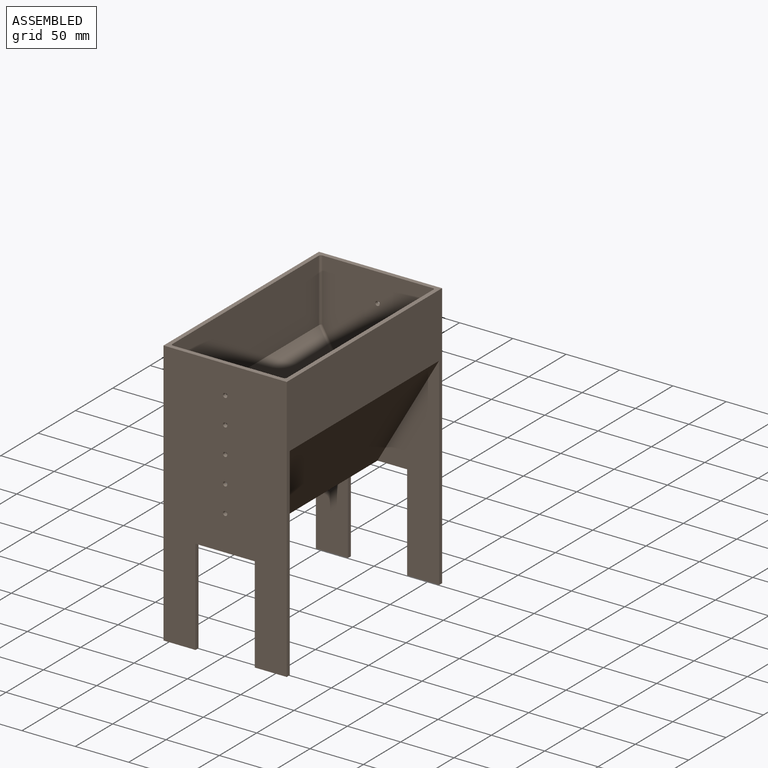
[diagram: assembled view]
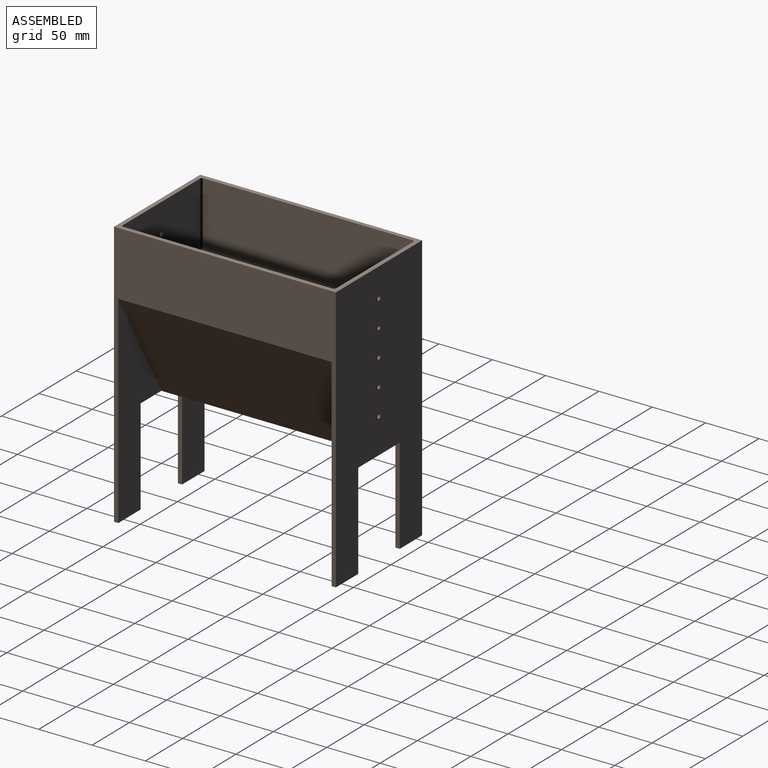
[diagram: assembled view, second angle]
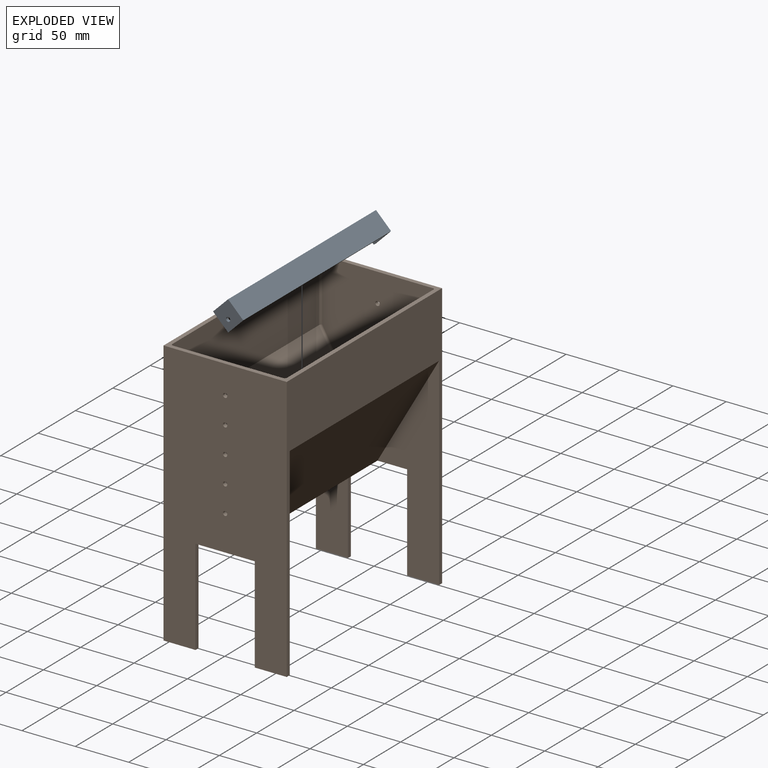
[diagram: exploded view]
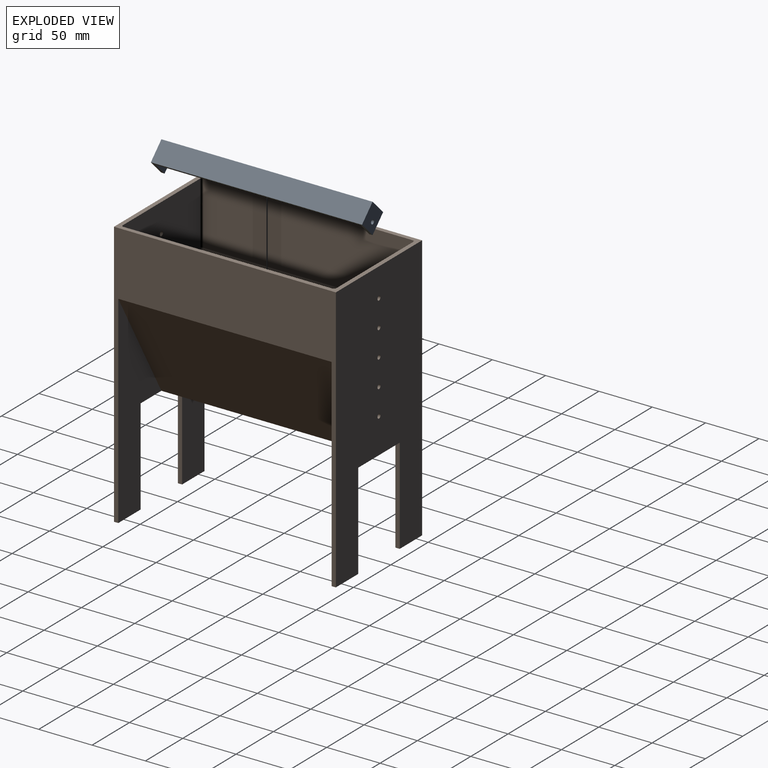
[diagram: exploded view, second angle]
ASSEMBLY  parts=2 mates=2
PART A: 12 faces, bbox 28.3x198x28.3 mm
  f0: plane 198x14.14mm, normal (0.71,0,0.71), area 3960mm2, adj f1,f5,f7,f8
  f1: plane 198x14.14mm, normal (-0.71,0,0.71), area 3960mm2, adj f0,f2,f7,f8
  f2: plane 198x14.14mm, normal (-0.71,0,-0.71), area 696mm2, adj f1,f3,f5,f6,f7,f8,f9
  f3: plane 192x12.02mm, normal (0.71,0,-0.71), area 3264mm2, adj f2,f4,f6,f9
  f4: plane 192x12.02mm, normal (-0.71,0,-0.71), area 3264mm2, adj f3,f5,f6,f9
  f5: plane 198x14.14mm, normal (0.71,0,-0.71), area 696mm2, adj f0,f2,f4,f6,f7,f8,f9
  f6: plane 24.04x24.04mm, normal (0,1,0), area 276.4mm2, adj f2,f3,f4,f5,f11
  f7: plane 28.28x28.28mm, normal (0,-1,0), area 387.4mm2, adj f0,f1,f2,f5,f11
  f8: plane 28.28x28.28mm, normal (0,1,0), area 387.4mm2, adj f0,f1,f2,f5,f10
  f9: plane 24.04x24.04mm, normal (0,-1,0), area 276.4mm2, adj f2,f3,f4,f5,f10
  f10: cylinder r=2mm len=4mm, axis (0,-1,0), area 37.7mm2, adj f8,f9
  f11: cylinder r=2mm len=4mm, axis (0,-1,0), area 37.7mm2, adj f6,f7
PART B: 48 faces, bbox 115.5x208x250 mm
  f0: plane 30x4mm, normal (0,0,-1), area 120mm2, adj f3,f11,f13,f35
  f1: plane 30x4mm, normal (0,0,-1), area 120mm2, adj f5,f13,f18,f32
  f2: plane 190x57.74mm, normal (0,1,0), area 5586.8mm2, adj f6,f10,f17,f34,f36
  f3: plane 250x115.47mm, normal (0,-1,0), area 23812.4mm2, adj f0,f9,f10,f13,f17,f21,f22,f23
  f4: plane 190x57.74mm, normal (0,-1,0), area 5586.8mm2, adj f6,f10,f20,f31,f33
  f5: plane 250x115.47mm, normal (0,1,0), area 23812.4mm2, adj f1,f9,f10,f13,f20,f26,f27,f28
  f6: plane 200x100mm, normal (-0.87,0,-0.5), area 23094mm2, adj f2,f4,f10,f12
  f7: plane 196x90.07mm, normal (0.87,0,0.5), area 20385.2mm2, adj f8,f40,f43,f44
  f8: plane 196x58.93mm, normal (1,0,0), area 11549.9mm2, adj f7,f9,f38,f42
  f9: plane 208x115.47mm, normal (0,0,1), area 2527.2mm2, adj f3,f5,f8,f10,f13,f14,f16,f19
  f10: plane 250x208mm, normal (-1,0,0), area 14000mm2, adj f2,f3,f4,f5,f6,f9,f17,f20
  f11: plane 190x57.74mm, normal (0,1,0), area 5586.8mm2, adj f0,f12,f13,f35,f36
  f12: plane 200x100mm, normal (0.87,0,-0.5), area 23094mm2, adj f6,f11,f13,f18
  f13: plane 250x208mm, normal (1,0,0), area 14000mm2, adj f0,f1,f3,f5,f9,f11,f12,f18
  f14: plane 196x58.93mm, normal (-1,0,0), area 11549.9mm2, adj f9,f15,f37,f47
  f15: plane 196x90.07mm, normal (-0.87,0,0.5), area 20385.2mm2, adj f14,f39,f43,f46
  f16: plane 148x103.47mm, normal (0,1,0), area 10614.9mm2, adj f9,f21,f22,f23,f24,f25,f37,f38
  f17: plane 30x4mm, normal (0,0,-1), area 120mm2, adj f2,f3,f10,f34
  f18: plane 190x57.74mm, normal (0,-1,0), area 5586.8mm2, adj f1,f12,f13,f31,f32
  f19: plane 148x103.47mm, normal (0,-1,0), area 10614.9mm2, adj f9,f26,f27,f28,f29,f30,f42,f44
  f20: plane 30x4mm, normal (0,0,-1), area 120mm2, adj f4,f5,f10,f33
  f21: cylinder r=2mm len=4mm, axis (0,-1,0), area 50.3mm2, adj f3,f16
  f22: cylinder r=2mm len=4mm, axis (0,-1,0), area 50.3mm2, adj f3,f16
  f23: cylinder r=2mm len=4mm, axis (0,-1,0), area 50.3mm2, adj f3,f16
  f24: cylinder r=2mm len=4mm, axis (0,-1,0), area 50.3mm2, adj f3,f16
  f25: cylinder r=2mm len=4mm, axis (0,-1,0), area 50.3mm2, adj f3,f16
  f26: cylinder r=2mm len=4mm, axis (0,1,0), area 50.3mm2, adj f5,f19
  f27: cylinder r=2mm len=4mm, axis (0,1,0), area 50.3mm2, adj f5,f19
  f28: cylinder r=2mm len=4mm, axis (0,1,0), area 50.3mm2, adj f5,f19
  f29: cylinder r=2mm len=4mm, axis (0,1,0), area 50.3mm2, adj f5,f19
  f30: cylinder r=2mm len=4mm, axis (0,1,0), area 50.3mm2, adj f5,f19
  f31: plane 55.47x4mm, normal (0,0,-1), area 221.9mm2, adj f4,f5,f18,f32,f33
  f32: plane 90x4mm, normal (-1,0,0), area 360mm2, adj f1,f5,f18,f31
  f33: plane 90x4mm, normal (1,0,0), area 360mm2, adj f4,f5,f20,f31
  f34: plane 90x4mm, normal (1,0,0), area 360mm2, adj f2,f3,f17,f36
  f35: plane 90x4mm, normal (-1,0,0), area 360mm2, adj f0,f3,f11,f36
  f36: plane 55.47x4mm, normal (0,0,-1), area 221.9mm2, adj f2,f3,f11,f34,f35
  f37: cylinder r=2mm len=58.93mm, axis (0,0,1), area 184.5mm2, adj f9,f14,f16,f39
  f38: cylinder r=2mm len=58.93mm, axis (0,0,-1), area 184.5mm2, adj f8,f9,f16,f40
  f39: cylinder r=2mm len=91.07mm, axis (0.5,0,0.87), area 326.1mm2, adj f15,f16,f37,f41
  f40: cylinder r=2mm len=91.07mm, axis (0.5,0,-0.87), area 326.1mm2, adj f7,f16,f38,f41
  f41: sphere r=2mm, area 8.4mm2, adj f39,f40,f43
  f42: cylinder r=2mm len=58.93mm, axis (0,0,-1), area 184.5mm2, adj f8,f9,f19,f44
  f43: cylinder r=2mm len=196mm, axis (0,1,0), area 821mm2, adj f7,f15,f41,f45
  f44: cylinder r=2mm len=91.07mm, axis (0.5,0,-0.87), area 326.1mm2, adj f7,f19,f42,f45
  f45: sphere r=2mm, area 8.4mm2, adj f43,f44,f46
  f46: cylinder r=2mm len=91.07mm, axis (0.5,0,0.87), area 326.1mm2, adj f15,f19,f45,f47
  f47: cylinder r=2mm len=58.93mm, axis (0,0,1), area 184.5mm2, adj f9,f14,f19,f46
PLACE A t=(-40.76,-9.59,62.55)mm
PLACE B t=(-40.76,-8.59,-12.59)mm fixed
MATE cylindrical A.f10 <-> B.f24  axis (0,-1,0) through (-40.76,-108.59,45.41)mm
MATE planar A.f7 <-> B.f16  axis (0,-1,0) through (-40.76,-108.59,48.51)mm
